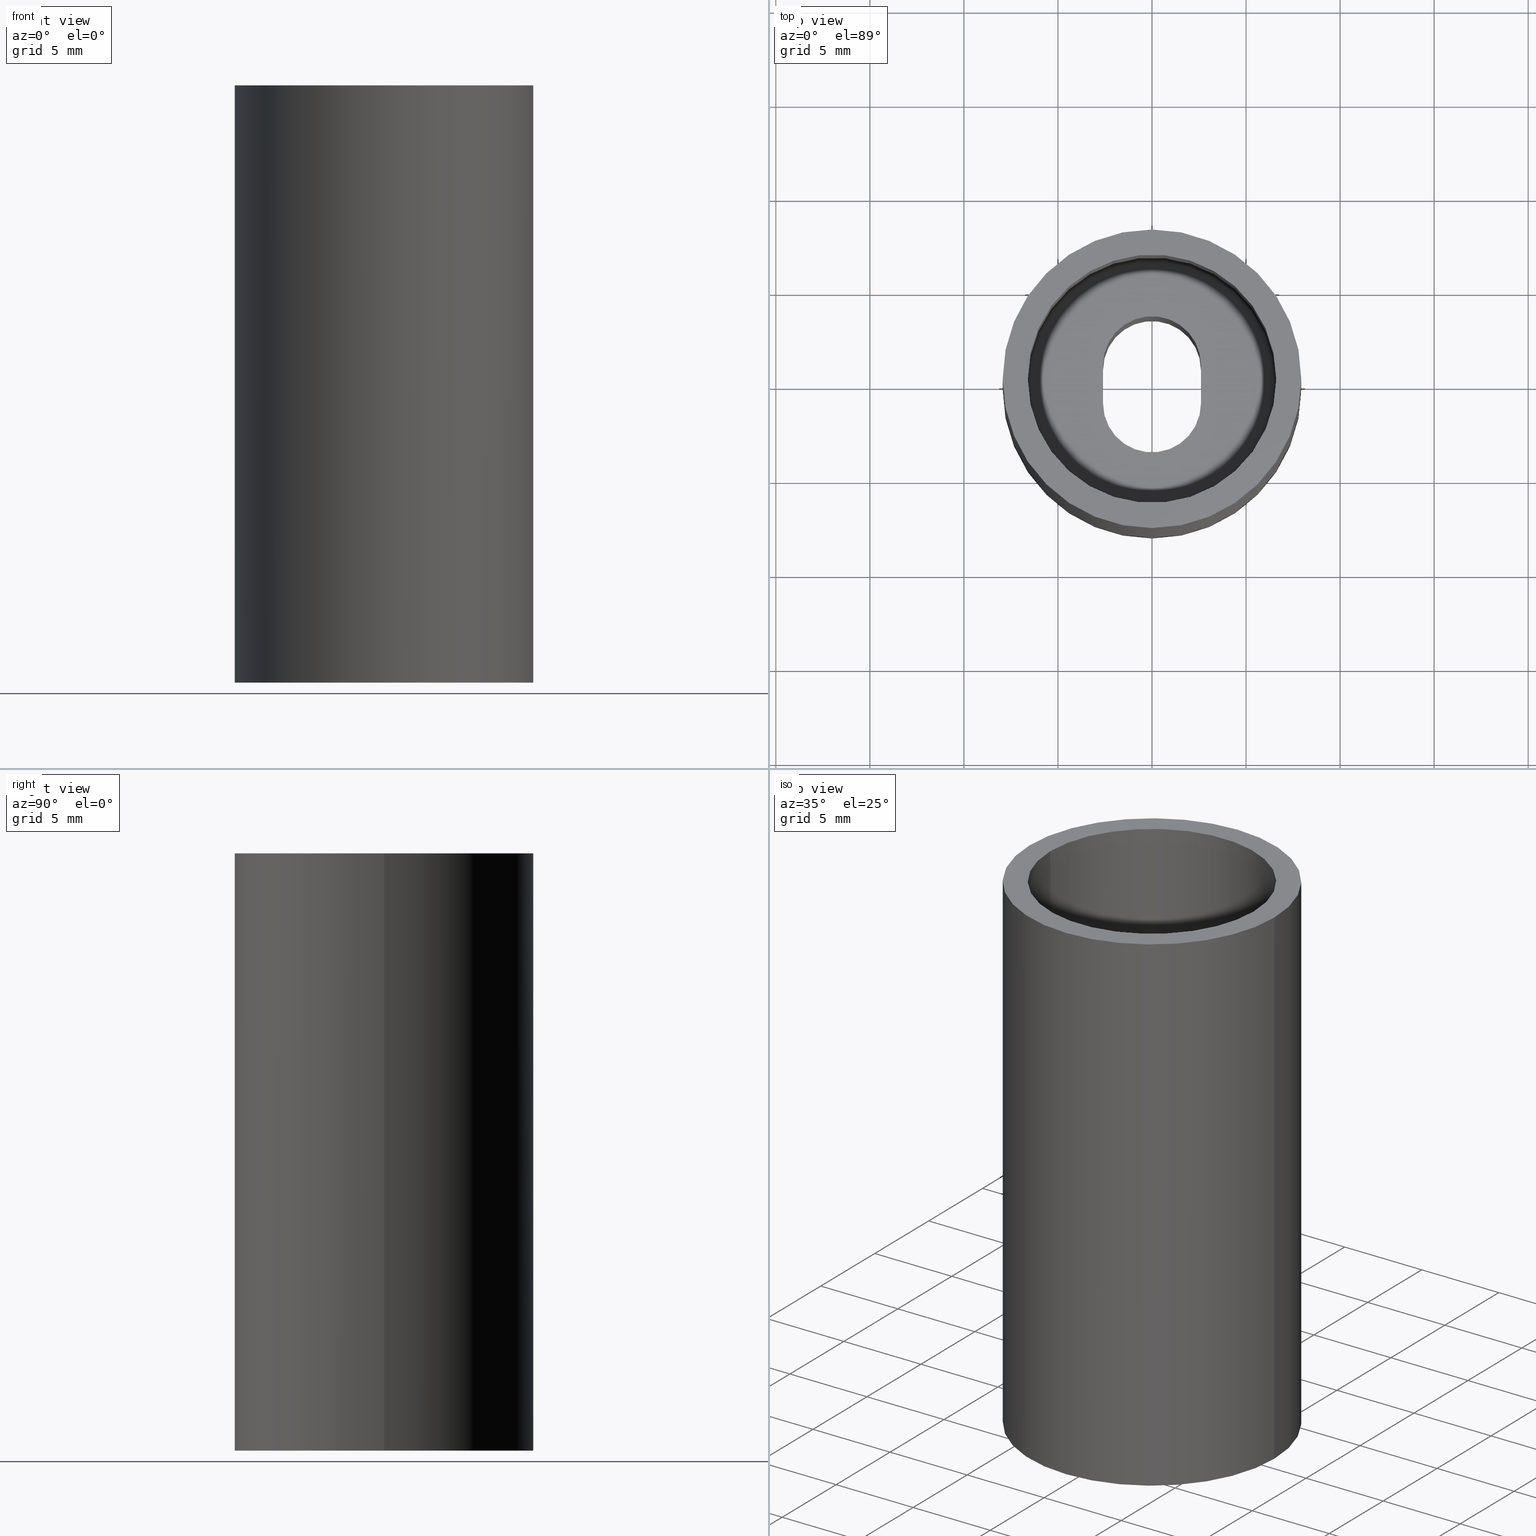
[diagram: canonical four-view strip — front | top / right | iso, engineering-drawing reading convention]
A machine part, canonical four-view strip (front | top / right | iso — engineering-drawing reading convention). The complete STEP part file that produces these views, byte-faithful:
ISO-10303-21;
HEADER;
FILE_DESCRIPTION (( 'STEP AP214' ),
    '1' );
FILE_NAME ('BK0030.STEP',
    '2015-11-24T15:28:24',
    ( 'JeffCAD' ),
    ( 'Microsoft' ),
    'SwSTEP 2.0',
    'SolidWorks 2015',
    '' );
FILE_SCHEMA (( 'AUTOMOTIVE_DESIGN' ));
ENDSEC;

DATA;
#1 = PLANE ( 'NONE',  #367 ) ;
#2 =( LENGTH_UNIT ( ) NAMED_UNIT ( * ) SI_UNIT ( $, .METRE. ) );
#3 = FACE_BOUND ( 'NONE', #375, .T. ) ;
#4 = CARTESIAN_POINT ( 'NONE',  ( 0.3125000000000000000, 0.0000000000000000000, 0.0000000000000000000 ) ) ;
#5 = DIMENSIONAL_EXPONENTS ( 1.000000000000000000, 0.0000000000000000000, 0.0000000000000000000, 0.0000000000000000000, 0.0000000000000000000, 0.0000000000000000000, 0.0000000000000000000 ) ;
#6 = ORIENTED_EDGE ( 'NONE', *, *, #164, .F. ) ;
#7 = DIRECTION ( 'NONE',  ( -0.0000000000000000000, 0.0000000000000000000, 1.000000000000000000 ) ) ;
#8 = DIRECTION ( 'NONE',  ( 0.0000000000000000000, 0.0000000000000000000, 1.000000000000000000 ) ) ;
#9 = FILL_AREA_STYLE_COLOUR ( '', #281 ) ;
#10 = EDGE_CURVE ( 'NONE', #80, #418, #106, .T. ) ;
#11 = ORIENTED_EDGE ( 'NONE', *, *, #90, .F. ) ;
#12 = LINE ( 'NONE', #203, #194 ) ;
#13 = FACE_OUTER_BOUND ( 'NONE', #49, .T. ) ;
#14 = EDGE_CURVE ( 'NONE', #53, #137, #12, .T. ) ;
#15 = CARTESIAN_POINT ( 'NONE',  ( 0.1025000000000000200, -0.03999999999999998000, -0.6600000000000000300 ) ) ;
#16 = ORIENTED_EDGE ( 'NONE', *, *, #90, .T. ) ;
#17 = ORIENTED_EDGE ( 'NONE', *, *, #386, .T. ) ;
#18 = ORIENTED_EDGE ( 'NONE', *, *, #225, .T. ) ;
#19 = PRESENTATION_LAYER_ASSIGNMENT (  '', '', ( #173 ) ) ;
#20 = DIRECTION ( 'NONE',  ( 0.0000000000000000000, 0.0000000000000000000, 1.000000000000000000 ) ) ;
#21 = ADVANCED_FACE ( 'NONE', ( #414 ), #344, .F. ) ;
#22 = CYLINDRICAL_SURFACE ( 'NONE', #314, 0.3125000000000000000 ) ;
#23 = DIRECTION ( 'NONE',  ( 1.000000000000000000, 0.0000000000000000000, 0.0000000000000000000 ) ) ;
#24 = CARTESIAN_POINT ( 'NONE',  ( -0.2450000000000000000, 3.000384657911014900E-017, -0.6450000000000001300 ) ) ;
#25 = VERTEX_POINT ( 'NONE', #159 ) ;
#26 = PRESENTATION_LAYER_ASSIGNMENT (  '', '', ( #311 ) ) ;
#27 = EDGE_LOOP ( 'NONE', ( #211, #259 ) ) ;
#28 = ADVANCED_BREP_SHAPE_REPRESENTATION ( 'BK0030', ( #244, #406 ), #45 ) ;
#29 = ORIENTED_EDGE ( 'NONE', *, *, #217, .F. ) ;
#30 = CARTESIAN_POINT ( 'NONE',  ( -0.1024999999999999900, -0.04000000000000001500, -1.250000000000000000 ) ) ;
#31 = EDGE_CURVE ( 'NONE', #53, #283, #339, .T. ) ;
#32 = LINE ( 'NONE', #149, #303 ) ;
#33 = PLANE ( 'NONE',  #222 ) ;
#34 = FACE_OUTER_BOUND ( 'NONE', #219, .T. ) ;
#35 = ORIENTED_EDGE ( 'NONE', *, *, #69, .T. ) ;
#36 = CARTESIAN_POINT ( 'NONE',  ( -0.2450000000000000000, 3.092233167847066800E-017, -0.6600000000000000300 ) ) ;
#37 = VERTEX_POINT ( 'NONE', #152 ) ;
#38 = ADVANCED_FACE ( 'NONE', ( #389 ), #376, .T. ) ;
#39 = VECTOR ( 'NONE', #189, 39.37007874015748100 ) ;
#40 =( CONVERSION_BASED_UNIT ( 'INCH', #329 ) LENGTH_UNIT ( ) NAMED_UNIT ( #94 ) );
#41 = DIRECTION ( 'NONE',  ( 1.000000000000000000, 0.0000000000000000000, 0.0000000000000000000 ) ) ;
#42 = DIRECTION ( 'NONE',  ( 1.000000000000000000, 0.0000000000000000000, 0.0000000000000000000 ) ) ;
#43 = ORIENTED_EDGE ( 'NONE', *, *, #239, .T. ) ;
#44 = PRODUCT_DEFINITION_CONTEXT ( 'detailed design', #385, 'design' ) ;
#45 =( GEOMETRIC_REPRESENTATION_CONTEXT ( 3 ) GLOBAL_UNCERTAINTY_ASSIGNED_CONTEXT ( ( #394 ) ) GLOBAL_UNIT_ASSIGNED_CONTEXT ( ( #40, #63, #299 ) ) REPRESENTATION_CONTEXT ( 'NONE', 'WORKASPACE' ) );
#46 = CIRCLE ( 'NONE', #118, 0.1024999999999999900 ) ;
#47 = ORIENTED_EDGE ( 'NONE', *, *, #69, .F. ) ;
#48 = DIRECTION ( 'NONE',  ( 0.0000000000000000000, 0.0000000000000000000, 1.000000000000000000 ) ) ;
#49 = EDGE_LOOP ( 'NONE', ( #245, #275, #267, #59 ) ) ;
#50 = LINE ( 'NONE', #30, #397 ) ;
#51 = FACE_OUTER_BOUND ( 'NONE', #27, .T. ) ;
#52 = ORIENTED_EDGE ( 'NONE', *, *, #234, .T. ) ;
#53 = VERTEX_POINT ( 'NONE', #393 ) ;
#54 = DIRECTION ( 'NONE',  ( 0.0000000000000000000, 0.0000000000000000000, 1.000000000000000000 ) ) ;
#55 = ORIENTED_EDGE ( 'NONE', *, *, #295, .T. ) ;
#56 = CARTESIAN_POINT ( 'NONE',  ( 0.2450000000000000000, 0.0000000000000000000, -0.6450000000000001300 ) ) ;
#57 = AXIS2_PLACEMENT_3D ( 'NONE', #56, #116, #290 ) ;
#58 = CARTESIAN_POINT ( 'NONE',  ( 0.1025000000000000200, -0.03999999999999998000, -1.250000000000000000 ) ) ;
#59 = ORIENTED_EDGE ( 'NONE', *, *, #323, .F. ) ;
#60 = VERTEX_POINT ( 'NONE', #4 ) ;
#61 = COLOUR_RGB ( '',0.7921568627450980000, 0.8196078431372548800, 0.9333333333333333500 ) ;
#62 = DIRECTION ( 'NONE',  ( 1.000000000000000000, 0.0000000000000000000, 0.0000000000000000000 ) ) ;
#63 =( NAMED_UNIT ( * ) PLANE_ANGLE_UNIT ( ) SI_UNIT ( $, .RADIAN. ) );
#64 = AXIS2_PLACEMENT_3D ( 'NONE', #71, #54, #272 ) ;
#65 = FACE_OUTER_BOUND ( 'NONE', #235, .T. ) ;
#66 = AXIS2_PLACEMENT_3D ( 'NONE', #174, #291, #87 ) ;
#67 = ORIENTED_EDGE ( 'NONE', *, *, #325, .T. ) ;
#68 = CYLINDRICAL_SURFACE ( 'NONE', #172, 0.1024999999999999900 ) ;
#69 = EDGE_CURVE ( 'NONE', #370, #60, #112, .T. ) ;
#70 = LINE ( 'NONE', #353, #140 ) ;
#71 = CARTESIAN_POINT ( 'NONE',  ( 0.0000000000000000000, 0.0000000000000000000, -1.250000000000000000 ) ) ;
#72 = ADVANCED_FACE ( 'NONE', ( #88, #73 ), #1, .T. ) ;
#73 = FACE_OUTER_BOUND ( 'NONE', #358, .T. ) ;
#74 = AXIS2_PLACEMENT_3D ( 'NONE', #205, #345, #124 ) ;
#75 = ADVANCED_FACE ( 'NONE', ( #327 ), #33, .F. ) ;
#76 =( LENGTH_UNIT ( ) NAMED_UNIT ( * ) SI_UNIT ( $, .METRE. ) );
#77 = CARTESIAN_POINT ( 'NONE',  ( 2.234980408443919300E-017, -0.04000000000000000100, -1.250000000000000000 ) ) ;
#78 = CARTESIAN_POINT ( 'NONE',  ( -0.1024999999999999900, -2.187612651176461300E-017, -1.250000000000000000 ) ) ;
#79 = ADVANCED_FACE ( 'NONE', ( #260 ), #68, .F. ) ;
#80 = VERTEX_POINT ( 'NONE', #341 ) ;
#81 =( GEOMETRIC_REPRESENTATION_CONTEXT ( 3 ) GLOBAL_UNCERTAINTY_ASSIGNED_CONTEXT ( ( #107 ) ) GLOBAL_UNIT_ASSIGNED_CONTEXT ( ( #417, #181, #228 ) ) REPRESENTATION_CONTEXT ( 'NONE', 'WORKASPACE' ) );
#82 = APPLICATION_PROTOCOL_DEFINITION ( 'draft international standard', 'automotive_design', 1998, #385 ) ;
#83 = ADVANCED_FACE ( 'NONE', ( #372 ), #180, .F. ) ;
#84 = CARTESIAN_POINT ( 'NONE',  ( -0.1024999999999999900, 0.03999999999999995200, -0.6600000000000000300 ) ) ;
#85 = ORIENTED_EDGE ( 'NONE', *, *, #255, .F. ) ;
#86 = AXIS2_PLACEMENT_3D ( 'NONE', #254, #308, #62 ) ;
#87 = DIRECTION ( 'NONE',  ( 2.134256245050204700E-016, -1.000000000000000000, 0.0000000000000000000 ) ) ;
#88 = FACE_BOUND ( 'NONE', #226, .T. ) ;
#89 = FACE_OUTER_BOUND ( 'NONE', #151, .T. ) ;
#90 = EDGE_CURVE ( 'NONE', #95, #313, #415, .T. ) ;
#91 = DIRECTION ( 'NONE',  ( 1.000000000000000000, 0.0000000000000000000, 0.0000000000000000000 ) ) ;
#92 = ORIENTED_EDGE ( 'NONE', *, *, #10, .T. ) ;
#93 = DIRECTION ( 'NONE',  ( 0.0000000000000000000, 0.0000000000000000000, 1.000000000000000000 ) ) ;
#94 = DIMENSIONAL_EXPONENTS ( 1.000000000000000000, 0.0000000000000000000, 0.0000000000000000000, 0.0000000000000000000, 0.0000000000000000000, 0.0000000000000000000, 0.0000000000000000000 ) ;
#95 = VERTEX_POINT ( 'NONE', #282 ) ;
#96 = CARTESIAN_POINT ( 'NONE',  ( 0.0000000000000000000, 0.0000000000000000000, -1.250000000000000000 ) ) ;
#97 = AXIS2_PLACEMENT_3D ( 'NONE', #398, #241, #306 ) ;
#98 = DIRECTION ( 'NONE',  ( 1.000000000000000000, 0.0000000000000000000, 0.0000000000000000000 ) ) ;
#99 = AXIS2_PLACEMENT_3D ( 'NONE', #96, #388, #171 ) ;
#100 = ADVANCED_FACE ( 'NONE', ( #145 ), #101, .F. ) ;
#101 = TOROIDAL_SURFACE ( 'NONE', #113, 0.2450000000000000000, 0.01499999999999999900 ) ;
#102 = SURFACE_STYLE_FILL_AREA ( #209 ) ;
#103 = AXIS2_PLACEMENT_3D ( 'NONE', #348, #401, #41 ) ;
#104 = VERTEX_POINT ( 'NONE', #177 ) ;
#105 = CIRCLE ( 'NONE', #154, 0.2600000000000000100 ) ;
#106 = CIRCLE ( 'NONE', #183, 0.2600000000000000100 ) ;
#107 = UNCERTAINTY_MEASURE_WITH_UNIT (LENGTH_MEASURE( 1.000000000000000100E-005 ), #417, 'distance_accuracy_value', 'NONE');
#108 = ADVANCED_FACE ( 'NONE', ( #186 ), #261, .F. ) ;
#109 = DIRECTION ( 'NONE',  ( -0.0000000000000000000, 0.0000000000000000000, 1.000000000000000000 ) ) ;
#110 = EDGE_CURVE ( 'NONE', #53, #111, #307, .T. ) ;
#111 = VERTEX_POINT ( 'NONE', #156 ) ;
#112 = CIRCLE ( 'NONE', #86, 0.3125000000000000000 ) ;
#113 = AXIS2_PLACEMENT_3D ( 'NONE', #419, #7, #98 ) ;
#114 = CARTESIAN_POINT ( 'NONE',  ( -0.3125000000000000000, 3.827021247335478900E-017, -1.250000000000000000 ) ) ;
#115 = CIRCLE ( 'NONE', #213, 0.01500000000000001200 ) ;
#116 = DIRECTION ( 'NONE',  ( 0.0000000000000000000, -1.000000000000000000, 0.0000000000000000000 ) ) ;
#117 = SURFACE_STYLE_FILL_AREA ( #380 ) ;
#118 = AXIS2_PLACEMENT_3D ( 'NONE', #326, #369, #240 ) ;
#119 = CIRCLE ( 'NONE', #266, 0.2450000000000000000 ) ;
#120 = ORIENTED_EDGE ( 'NONE', *, *, #175, .F. ) ;
#121 = PRODUCT_CONTEXT ( 'NONE', #262, 'mechanical' ) ;
#122 = PRESENTATION_STYLE_ASSIGNMENT (( #277 ) ) ;
#123 = ADVANCED_FACE ( 'NONE', ( #13 ), #22, .T. ) ;
#124 = DIRECTION ( 'NONE',  ( 1.000000000000000000, 0.0000000000000000000, 0.0000000000000000000 ) ) ;
#125 =( LENGTH_UNIT ( ) NAMED_UNIT ( * ) SI_UNIT ( $, .METRE. ) );
#126 = CARTESIAN_POINT ( 'NONE',  ( 0.0000000000000000000, 0.0000000000000000000, -1.250000000000000000 ) ) ;
#127 = ORIENTED_EDGE ( 'NONE', *, *, #390, .T. ) ;
#128 = PRODUCT_DEFINITION_FORMATION_WITH_SPECIFIED_SOURCE ( 'ANY', '', #136, .NOT_KNOWN. ) ;
#129 = CARTESIAN_POINT ( 'NONE',  ( 0.2600000000000000100, 0.0000000000000000000, -0.6600000000000000300 ) ) ;
#130 = ORIENTED_EDGE ( 'NONE', *, *, #362, .F. ) ;
#131 = DIRECTION ( 'NONE',  ( 1.000000000000000000, 0.0000000000000000000, 0.0000000000000000000 ) ) ;
#132 = LINE ( 'NONE', #139, #363 ) ;
#133 = AXIS2_PLACEMENT_3D ( 'NONE', #330, #198, #296 ) ;
#134 = DIRECTION ( 'NONE',  ( 1.000000000000000000, 0.0000000000000000000, 0.0000000000000000000 ) ) ;
#135 = EDGE_LOOP ( 'NONE', ( #170, #268, #202, #67 ) ) ;
#136 = PRODUCT ( 'BK0030', 'BK0030', '', ( #121 ) ) ;
#137 = VERTEX_POINT ( 'NONE', #155 ) ;
#138 = EDGE_CURVE ( 'NONE', #337, #336, #400, .T. ) ;
#139 = CARTESIAN_POINT ( 'NONE',  ( 0.3125000000000000000, 0.0000000000000000000, -1.250000000000000000 ) ) ;
#140 = VECTOR ( 'NONE', #298, 39.37007874015748100 ) ;
#141 = DIMENSIONAL_EXPONENTS ( 1.000000000000000000, 0.0000000000000000000, 0.0000000000000000000, 0.0000000000000000000, 0.0000000000000000000, 0.0000000000000000000, 0.0000000000000000000 ) ;
#142 = DIRECTION ( 'NONE',  ( 1.000000000000000000, 0.0000000000000000000, -0.0000000000000000000 ) ) ;
#143 = AXIS2_PLACEMENT_3D ( 'NONE', #168, #332, #412 ) ;
#144 = DIRECTION ( 'NONE',  ( 1.000000000000000000, 0.0000000000000000000, 0.0000000000000000000 ) ) ;
#145 = FACE_OUTER_BOUND ( 'NONE', #319, .T. ) ;
#146 = DIRECTION ( 'NONE',  ( 0.0000000000000000000, 0.0000000000000000000, 1.000000000000000000 ) ) ;
#147 = FILL_AREA_STYLE_COLOUR ( '', #61 ) ;
#148 = VERTEX_POINT ( 'NONE', #36 ) ;
#149 = CARTESIAN_POINT ( 'NONE',  ( -0.1024999999999999900, 0.03999999999999995200, -1.250000000000000000 ) ) ;
#150 = ORIENTED_EDGE ( 'NONE', *, *, #138, .T. ) ;
#151 = EDGE_LOOP ( 'NONE', ( #130, #150, #271, #47 ) ) ;
#152 = CARTESIAN_POINT ( 'NONE',  ( -0.1024999999999999900, -0.04000000000000001500, -1.250000000000000000 ) ) ;
#153 = VECTOR ( 'NONE', #227, 39.37007874015748100 ) ;
#154 = AXIS2_PLACEMENT_3D ( 'NONE', #238, #392, #404 ) ;
#155 = CARTESIAN_POINT ( 'NONE',  ( 0.1024999999999999900, 0.04000000000000004900, -0.6600000000000000300 ) ) ;
#156 = CARTESIAN_POINT ( 'NONE',  ( 0.1025000000000000200, -0.04000000000000000100, -1.250000000000000000 ) ) ;
#157 = EDGE_LOOP ( 'NONE', ( #221, #361, #210, #85 ) ) ;
#158 = AXIS2_PLACEMENT_3D ( 'NONE', #207, #343, #23 ) ;
#159 = CARTESIAN_POINT ( 'NONE',  ( 0.2450000000000000000, 0.0000000000000000000, -0.6600000000000000300 ) ) ;
#160 = LINE ( 'NONE', #218, #349 ) ;
#161 =( NAMED_UNIT ( * ) PLANE_ANGLE_UNIT ( ) SI_UNIT ( $, .RADIAN. ) );
#162 = CIRCLE ( 'NONE', #97, 0.1024999999999999900 ) ;
#163 = DIRECTION ( 'NONE',  ( 0.0000000000000000000, 0.0000000000000000000, 1.000000000000000000 ) ) ;
#164 = EDGE_CURVE ( 'NONE', #104, #365, #162, .T. ) ;
#165 = CARTESIAN_POINT ( 'NONE',  ( -0.1024999999999999900, 0.03999999999999995200, -1.250000000000000000 ) ) ;
#166 = ADVANCED_FACE ( 'NONE', ( #65, #251 ), #206, .T. ) ;
#167 = CARTESIAN_POINT ( 'NONE',  ( 0.0000000000000000000, 0.0000000000000000000, -0.6450000000000001300 ) ) ;
#168 = CARTESIAN_POINT ( 'NONE',  ( 0.0000000000000000000, 0.0000000000000000000, -0.6600000000000000300 ) ) ;
#169 = DIRECTION ( 'NONE',  ( 1.000000000000000000, 0.0000000000000000000, 0.0000000000000000000 ) ) ;
#170 = ORIENTED_EDGE ( 'NONE', *, *, #164, .T. ) ;
#171 = DIRECTION ( 'NONE',  ( 1.000000000000000000, 0.0000000000000000000, 0.0000000000000000000 ) ) ;
#172 = AXIS2_PLACEMENT_3D ( 'NONE', #77, #93, #42 ) ;
#173 = STYLED_ITEM ( 'NONE', ( #122 ), #244 ) ;
#174 = CARTESIAN_POINT ( 'NONE',  ( 0.1025000000000000200, 2.187612651176460000E-017, -1.250000000000000000 ) ) ;
#175 = EDGE_CURVE ( 'NONE', #137, #309, #304, .T. ) ;
#176 = LINE ( 'NONE', #315, #373 ) ;
#177 = CARTESIAN_POINT ( 'NONE',  ( -0.1024999999999999900, -0.04000000000000001500, -0.6600000000000000300 ) ) ;
#178 = LINE ( 'NONE', #371, #39 ) ;
#179 = DIRECTION ( 'NONE',  ( 1.000000000000000000, 0.0000000000000000000, 0.0000000000000000000 ) ) ;
#180 = CYLINDRICAL_SURFACE ( 'NONE', #143, 0.2600000000000000100 ) ;
#181 =( NAMED_UNIT ( * ) PLANE_ANGLE_UNIT ( ) SI_UNIT ( $, .RADIAN. ) );
#182 = ORIENTED_EDGE ( 'NONE', *, *, #368, .T. ) ;
#183 = AXIS2_PLACEMENT_3D ( 'NONE', #167, #263, #134 ) ;
#184 = SURFACE_SIDE_STYLE ('',( #117 ) ) ;
#185 = CIRCLE ( 'NONE', #57, 0.01499999999999997700 ) ;
#186 = FACE_OUTER_BOUND ( 'NONE', #204, .T. ) ;
#187 = DIRECTION ( 'NONE',  ( 1.224646799147353200E-016, 1.000000000000000000, 0.0000000000000000000 ) ) ;
#188 = UNCERTAINTY_MEASURE_WITH_UNIT (LENGTH_MEASURE( 1.000000000000000100E-005 ), #359, 'distance_accuracy_value', 'NONE');
#189 = DIRECTION ( 'NONE',  ( 2.134256245050206200E-016, -1.000000000000000000, 0.0000000000000000000 ) ) ;
#190 = EDGE_CURVE ( 'NONE', #60, #370, #305, .T. ) ;
#191 = ORIENTED_EDGE ( 'NONE', *, *, #190, .T. ) ;
#192 = CARTESIAN_POINT ( 'NONE',  ( -0.3125000000000000000, 3.827021247335478900E-017, 0.0000000000000000000 ) ) ;
#193 = CIRCLE ( 'NONE', #103, 0.2600000000000000100 ) ;
#194 = VECTOR ( 'NONE', #223, 39.37007874015748100 ) ;
#195 = AXIS2_PLACEMENT_3D ( 'NONE', #126, #163, #395 ) ;
#196 = ORIENTED_EDGE ( 'NONE', *, *, #302, .T. ) ;
#197 = AXIS2_PLACEMENT_3D ( 'NONE', #294, #232, #142 ) ;
#198 = DIRECTION ( 'NONE',  ( -0.0000000000000000000, 0.0000000000000000000, 1.000000000000000000 ) ) ;
#199 = CIRCLE ( 'NONE', #64, 0.3125000000000000000 ) ;
#200 = SURFACE_STYLE_USAGE ( .BOTH. , #292 ) ;
#201 = DIRECTION ( 'NONE',  ( 0.0000000000000000000, 0.0000000000000000000, 1.000000000000000000 ) ) ;
#202 = ORIENTED_EDGE ( 'NONE', *, *, #386, .F. ) ;
#203 = CARTESIAN_POINT ( 'NONE',  ( 0.1024999999999999900, 0.04000000000000004900, -1.250000000000000000 ) ) ;
#204 = EDGE_LOOP ( 'NONE', ( #257, #236, #242, #264 ) ) ;
#205 = CARTESIAN_POINT ( 'NONE',  ( -2.143131898507869100E-018, 0.04000000000000000100, -1.250000000000000000 ) ) ;
#206 = PLANE ( 'NONE',  #249 ) ;
#207 = CARTESIAN_POINT ( 'NONE',  ( -2.143131898507869100E-018, 0.04000000000000000100, -1.250000000000000000 ) ) ;
#208 = PRODUCT_DEFINITION ( 'UNKNOWN', '', #128, #44 ) ;
#209 = FILL_AREA_STYLE ('',( #9 ) ) ;
#210 = ORIENTED_EDGE ( 'NONE', *, *, #295, .F. ) ;
#211 = ORIENTED_EDGE ( 'NONE', *, *, #351, .F. ) ;
#212 = DIRECTION ( 'NONE',  ( 1.000000000000000000, 0.0000000000000000000, 0.0000000000000000000 ) ) ;
#213 = AXIS2_PLACEMENT_3D ( 'NONE', #24, #187, #413 ) ;
#214 = CYLINDRICAL_SURFACE ( 'NONE', #99, 0.3125000000000000000 ) ;
#215 = CARTESIAN_POINT ( 'NONE',  ( 0.0000000000000000000, 0.0000000000000000000, -0.6600000000000000300 ) ) ;
#216 = EDGE_LOOP ( 'NONE', ( #6, #356, #120, #382 ) ) ;
#217 = EDGE_CURVE ( 'NONE', #148, #80, #115, .T. ) ;
#218 = CARTESIAN_POINT ( 'NONE',  ( 0.1025000000000000200, 2.187612651176460000E-017, -0.6600000000000000300 ) ) ;
#219 = EDGE_LOOP ( 'NONE', ( #420, #92, #127, #229 ) ) ;
#220 = PRODUCT_RELATED_PRODUCT_CATEGORY ( 'part', '', ( #136 ) ) ;
#221 = ORIENTED_EDGE ( 'NONE', *, *, #320, .F. ) ;
#222 = AXIS2_PLACEMENT_3D ( 'NONE', #78, #350, #280 ) ;
#223 = DIRECTION ( 'NONE',  ( 0.0000000000000000000, 0.0000000000000000000, 1.000000000000000000 ) ) ;
#224 = CYLINDRICAL_SURFACE ( 'NONE', #387, 0.2600000000000000100 ) ;
#225 = EDGE_CURVE ( 'NONE', #111, #365, #310, .T. ) ;
#226 = EDGE_LOOP ( 'NONE', ( #293, #11 ) ) ;
#227 = DIRECTION ( 'NONE',  ( 0.0000000000000000000, 0.0000000000000000000, 1.000000000000000000 ) ) ;
#228 =( NAMED_UNIT ( * ) SI_UNIT ( $, .STERADIAN. ) SOLID_ANGLE_UNIT ( ) );
#229 = ORIENTED_EDGE ( 'NONE', *, *, #270, .T. ) ;
#230 = MECHANICAL_DESIGN_GEOMETRIC_PRESENTATION_REPRESENTATION (  '', ( #173 ), #81 ) ;
#231 = AXIS2_PLACEMENT_3D ( 'NONE', #346, #146, #179 ) ;
#232 = DIRECTION ( 'NONE',  ( 0.0000000000000000000, 0.0000000000000000000, 1.000000000000000000 ) ) ;
#233 = ORIENTED_EDGE ( 'NONE', *, *, #325, .F. ) ;
#234 = EDGE_CURVE ( 'NONE', #283, #37, #178, .T. ) ;
#235 = EDGE_LOOP ( 'NONE', ( #383, #285 ) ) ;
#236 = ORIENTED_EDGE ( 'NONE', *, *, #239, .F. ) ;
#237 = DIRECTION ( 'NONE',  ( -0.0000000000000000000, 0.0000000000000000000, 1.000000000000000000 ) ) ;
#238 = CARTESIAN_POINT ( 'NONE',  ( 0.0000000000000000000, 0.0000000000000000000, -0.6450000000000001300 ) ) ;
#239 = EDGE_CURVE ( 'NONE', #283, #309, #32, .T. ) ;
#240 = DIRECTION ( 'NONE',  ( 1.000000000000000000, 0.0000000000000000000, 0.0000000000000000000 ) ) ;
#241 = DIRECTION ( 'NONE',  ( -0.0000000000000000000, 0.0000000000000000000, 1.000000000000000000 ) ) ;
#242 = ORIENTED_EDGE ( 'NONE', *, *, #31, .F. ) ;
#243 = DIRECTION ( 'NONE',  ( 2.134256245050204700E-016, -1.000000000000000000, 0.0000000000000000000 ) ) ;
#244 = MANIFOLD_SOLID_BREP ( 'Fillet1', #248 ) ;
#245 = ORIENTED_EDGE ( 'NONE', *, *, #351, .T. ) ;
#246 = AXIS2_PLACEMENT_3D ( 'NONE', #300, #333, #212 ) ;
#247 = LINE ( 'NONE', #129, #381 ) ;
#248 = CLOSED_SHELL ( 'NONE', ( #21, #83, #123, #75, #108, #38, #79, #355, #378, #72, #411, #166, #100 ) ) ;
#249 = AXIS2_PLACEMENT_3D ( 'NONE', #360, #421, #357 ) ;
#250 = CIRCLE ( 'NONE', #246, 0.2450000000000000000 ) ;
#251 = FACE_BOUND ( 'NONE', #216, .T. ) ;
#252 = CARTESIAN_POINT ( 'NONE',  ( -2.143131898507869100E-018, 0.04000000000000000100, -0.6600000000000000300 ) ) ;
#253 = VECTOR ( 'NONE', #374, 39.37007874015748100 ) ;
#254 = CARTESIAN_POINT ( 'NONE',  ( 0.0000000000000000000, 0.0000000000000000000, 0.0000000000000000000 ) ) ;
#255 = EDGE_CURVE ( 'NONE', #25, #418, #185, .T. ) ;
#256 = CARTESIAN_POINT ( 'NONE',  ( 0.1025000000000000200, 2.187612651176460000E-017, -1.250000000000000000 ) ) ;
#257 = ORIENTED_EDGE ( 'NONE', *, *, #175, .T. ) ;
#258 = CARTESIAN_POINT ( 'NONE',  ( 0.3125000000000000000, 0.0000000000000000000, -1.250000000000000000 ) ) ;
#259 = ORIENTED_EDGE ( 'NONE', *, *, #138, .F. ) ;
#260 = FACE_OUTER_BOUND ( 'NONE', #135, .T. ) ;
#261 = CYLINDRICAL_SURFACE ( 'NONE', #74, 0.1024999999999999900 ) ;
#262 = APPLICATION_CONTEXT ( 'automotive_design' ) ;
#263 = DIRECTION ( 'NONE',  ( 0.0000000000000000000, -0.0000000000000000000, -1.000000000000000000 ) ) ;
#264 = ORIENTED_EDGE ( 'NONE', *, *, #14, .T. ) ;
#265 = DIRECTION ( 'NONE',  ( 1.000000000000000000, 0.0000000000000000000, 0.0000000000000000000 ) ) ;
#266 = AXIS2_PLACEMENT_3D ( 'NONE', #396, #237, #131 ) ;
#267 = ORIENTED_EDGE ( 'NONE', *, *, #190, .F. ) ;
#268 = ORIENTED_EDGE ( 'NONE', *, *, #225, .F. ) ;
#269 = AXIS2_PLACEMENT_3D ( 'NONE', #252, #109, #317 ) ;
#270 = EDGE_CURVE ( 'NONE', #313, #95, #193, .T. ) ;
#271 = ORIENTED_EDGE ( 'NONE', *, *, #323, .T. ) ;
#272 = DIRECTION ( 'NONE',  ( 1.000000000000000000, 0.0000000000000000000, 0.0000000000000000000 ) ) ;
#273 = LINE ( 'NONE', #340, #253 ) ;
#274 = CARTESIAN_POINT ( 'NONE',  ( 0.0000000000000000000, 0.0000000000000000000, -1.250000000000000000 ) ) ;
#275 = ORIENTED_EDGE ( 'NONE', *, *, #362, .T. ) ;
#276 = AXIS2_PLACEMENT_3D ( 'NONE', #364, #324, #169 ) ;
#277 = SURFACE_STYLE_USAGE ( .BOTH. , #184 ) ;
#278 = ORIENTED_EDGE ( 'NONE', *, *, #31, .T. ) ;
#279 = VECTOR ( 'NONE', #366, 39.37007874015748100 ) ;
#280 = DIRECTION ( 'NONE',  ( 2.134256245050206200E-016, -1.000000000000000000, 0.0000000000000000000 ) ) ;
#281 = COLOUR_RGB ( '',0.7921568627450980000, 0.8196078431372548800, 0.9333333333333333500 ) ;
#282 = CARTESIAN_POINT ( 'NONE',  ( -0.2600000000000000100, 3.184081677783118700E-017, 0.0000000000000000000 ) ) ;
#283 = VERTEX_POINT ( 'NONE', #165 ) ;
#284 = DIRECTION ( 'NONE',  ( -0.0000000000000000000, -0.0000000000000000000, 1.000000000000000000 ) ) ;
#285 = ORIENTED_EDGE ( 'NONE', *, *, #320, .T. ) ;
#286 = PLANE ( 'NONE',  #197 ) ;
#287 = ORIENTED_EDGE ( 'NONE', *, *, #234, .F. ) ;
#288 = EDGE_LOOP ( 'NONE', ( #18, #297, #399, #377 ) ) ;
#289 = MECHANICAL_DESIGN_GEOMETRIC_PRESENTATION_REPRESENTATION (  '', ( #311 ), #334 ) ;
#290 = DIRECTION ( 'NONE',  ( 0.0000000000000000000, 0.0000000000000000000, -1.000000000000000000 ) ) ;
#291 = DIRECTION ( 'NONE',  ( -1.000000000000000000, -2.134256245050204700E-016, 0.0000000000000000000 ) ) ;
#292 = SURFACE_SIDE_STYLE ('',( #102 ) ) ;
#293 = ORIENTED_EDGE ( 'NONE', *, *, #270, .F. ) ;
#294 = CARTESIAN_POINT ( 'NONE',  ( 0.0000000000000000000, 0.0000000000000000000, -1.250000000000000000 ) ) ;
#295 = EDGE_CURVE ( 'NONE', #418, #80, #105, .T. ) ;
#296 = DIRECTION ( 'NONE',  ( 1.000000000000000000, 0.0000000000000000000, 0.0000000000000000000 ) ) ;
#297 = ORIENTED_EDGE ( 'NONE', *, *, #342, .F. ) ;
#298 = DIRECTION ( 'NONE',  ( 0.0000000000000000000, 0.0000000000000000000, 1.000000000000000000 ) ) ;
#299 =( NAMED_UNIT ( * ) SI_UNIT ( $, .STERADIAN. ) SOLID_ANGLE_UNIT ( ) );
#300 = CARTESIAN_POINT ( 'NONE',  ( 0.0000000000000000000, 0.0000000000000000000, -0.6600000000000000300 ) ) ;
#301 = ORIENTED_EDGE ( 'NONE', *, *, #403, .F. ) ;
#302 = EDGE_CURVE ( 'NONE', #309, #104, #176, .T. ) ;
#303 = VECTOR ( 'NONE', #20, 39.37007874015748100 ) ;
#304 = CIRCLE ( 'NONE', #269, 0.1024999999999999900 ) ;
#305 = CIRCLE ( 'NONE', #231, 0.3125000000000000000 ) ;
#306 = DIRECTION ( 'NONE',  ( 1.000000000000000000, 0.0000000000000000000, 0.0000000000000000000 ) ) ;
#307 = LINE ( 'NONE', #256, #279 ) ;
#308 = DIRECTION ( 'NONE',  ( 0.0000000000000000000, 0.0000000000000000000, 1.000000000000000000 ) ) ;
#309 = VERTEX_POINT ( 'NONE', #84 ) ;
#310 = LINE ( 'NONE', #58, #153 ) ;
#311 = STYLED_ITEM ( 'NONE', ( #416 ), #28 ) ;
#312 = DIRECTION ( 'NONE',  ( 2.134256245050206200E-016, -1.000000000000000000, 0.0000000000000000000 ) ) ;
#313 = VERTEX_POINT ( 'NONE', #352 ) ;
#314 = AXIS2_PLACEMENT_3D ( 'NONE', #274, #48, #144 ) ;
#315 = CARTESIAN_POINT ( 'NONE',  ( -0.1024999999999999900, -2.187612651176461300E-017, -0.6600000000000000300 ) ) ;
#316 = EDGE_LOOP ( 'NONE', ( #196, #233, #287, #43 ) ) ;
#317 = DIRECTION ( 'NONE',  ( 1.000000000000000000, 0.0000000000000000000, 0.0000000000000000000 ) ) ;
#318 = ORIENTED_EDGE ( 'NONE', *, *, #390, .F. ) ;
#319 = EDGE_LOOP ( 'NONE', ( #29, #301, #408, #331 ) ) ;
#320 = EDGE_CURVE ( 'NONE', #148, #25, #250, .T. ) ;
#321 = LENGTH_MEASURE_WITH_UNIT ( LENGTH_MEASURE( 0.02539999999999999900 ), #76 );
#322 = CARTESIAN_POINT ( 'NONE',  ( 0.0000000000000000000, 0.0000000000000000000, 0.0000000000000000000 ) ) ;
#323 = EDGE_CURVE ( 'NONE', #336, #60, #132, .T. ) ;
#324 = DIRECTION ( 'NONE',  ( -0.0000000000000000000, 0.0000000000000000000, 1.000000000000000000 ) ) ;
#325 = EDGE_CURVE ( 'NONE', #37, #104, #50, .T. ) ;
#326 = CARTESIAN_POINT ( 'NONE',  ( 2.234980408443919300E-017, -0.04000000000000000100, -1.250000000000000000 ) ) ;
#327 = FACE_OUTER_BOUND ( 'NONE', #316, .T. ) ;
#328 = DIRECTION ( 'NONE',  ( 0.0000000000000000000, 0.0000000000000000000, 1.000000000000000000 ) ) ;
#329 = LENGTH_MEASURE_WITH_UNIT ( LENGTH_MEASURE( 0.02539999999999999900 ), #125 );
#330 = CARTESIAN_POINT ( 'NONE',  ( 0.0000000000000000000, 0.0000000000000000000, -0.6450000000000001300 ) ) ;
#331 = ORIENTED_EDGE ( 'NONE', *, *, #10, .F. ) ;
#332 = DIRECTION ( 'NONE',  ( -0.0000000000000000000, -0.0000000000000000000, 1.000000000000000000 ) ) ;
#333 = DIRECTION ( 'NONE',  ( -0.0000000000000000000, 0.0000000000000000000, 1.000000000000000000 ) ) ;
#334 =( GEOMETRIC_REPRESENTATION_CONTEXT ( 3 ) GLOBAL_UNCERTAINTY_ASSIGNED_CONTEXT ( ( #188 ) ) GLOBAL_UNIT_ASSIGNED_CONTEXT ( ( #359, #161, #391 ) ) REPRESENTATION_CONTEXT ( 'NONE', 'WORKASPACE' ) );
#335 = CARTESIAN_POINT ( 'NONE',  ( 0.2600000000000000100, 0.0000000000000000000, -0.6450000000000001300 ) ) ;
#336 = VERTEX_POINT ( 'NONE', #258 ) ;
#337 = VERTEX_POINT ( 'NONE', #114 ) ;
#338 = DIRECTION ( 'NONE',  ( -0.0000000000000000000, -0.0000000000000000000, 1.000000000000000000 ) ) ;
#339 = CIRCLE ( 'NONE', #158, 0.1024999999999999900 ) ;
#340 = CARTESIAN_POINT ( 'NONE',  ( -0.2600000000000000100, 3.184081677783118700E-017, -0.6600000000000000300 ) ) ;
#341 = CARTESIAN_POINT ( 'NONE',  ( -0.2600000000000000100, 3.184081677783118700E-017, -0.6450000000000001300 ) ) ;
#342 = EDGE_CURVE ( 'NONE', #137, #365, #160, .T. ) ;
#343 = DIRECTION ( 'NONE',  ( -0.0000000000000000000, 0.0000000000000000000, 1.000000000000000000 ) ) ;
#344 = TOROIDAL_SURFACE ( 'NONE', #133, 0.2450000000000000000, 0.01499999999999999900 ) ;
#345 = DIRECTION ( 'NONE',  ( 0.0000000000000000000, 0.0000000000000000000, 1.000000000000000000 ) ) ;
#346 = CARTESIAN_POINT ( 'NONE',  ( 0.0000000000000000000, 0.0000000000000000000, 0.0000000000000000000 ) ) ;
#347 = ORIENTED_EDGE ( 'NONE', *, *, #110, .F. ) ;
#348 = CARTESIAN_POINT ( 'NONE',  ( 0.0000000000000000000, 0.0000000000000000000, 0.0000000000000000000 ) ) ;
#349 = VECTOR ( 'NONE', #243, 39.37007874015748100 ) ;
#350 = DIRECTION ( 'NONE',  ( -1.000000000000000000, -2.134256245050206200E-016, 0.0000000000000000000 ) ) ;
#351 = EDGE_CURVE ( 'NONE', #336, #337, #199, .T. ) ;
#352 = CARTESIAN_POINT ( 'NONE',  ( 0.2600000000000000100, 0.0000000000000000000, 0.0000000000000000000 ) ) ;
#353 = CARTESIAN_POINT ( 'NONE',  ( -0.3125000000000000000, 3.827021247335478900E-017, -1.250000000000000000 ) ) ;
#354 = PRODUCT_DEFINITION_SHAPE ( 'NONE', 'NONE',  #208 ) ;
#355 = ADVANCED_FACE ( 'NONE', ( #89 ), #214, .T. ) ;
#356 = ORIENTED_EDGE ( 'NONE', *, *, #302, .F. ) ;
#357 = DIRECTION ( 'NONE',  ( 1.000000000000000000, 0.0000000000000000000, 0.0000000000000000000 ) ) ;
#358 = EDGE_LOOP ( 'NONE', ( #191, #35 ) ) ;
#359 =( CONVERSION_BASED_UNIT ( 'INCH', #402 ) LENGTH_UNIT ( ) NAMED_UNIT ( #5 ) );
#360 = CARTESIAN_POINT ( 'NONE',  ( 0.0000000000000000000, 0.0000000000000000000, -0.6600000000000000300 ) ) ;
#361 = ORIENTED_EDGE ( 'NONE', *, *, #217, .T. ) ;
#362 = EDGE_CURVE ( 'NONE', #337, #370, #70, .T. ) ;
#363 = VECTOR ( 'NONE', #379, 39.37007874015748100 ) ;
#364 = CARTESIAN_POINT ( 'NONE',  ( 0.0000000000000000000, 0.0000000000000000000, 0.0000000000000000000 ) ) ;
#365 = VERTEX_POINT ( 'NONE', #15 ) ;
#366 = DIRECTION ( 'NONE',  ( 2.134256245050204700E-016, -1.000000000000000000, 0.0000000000000000000 ) ) ;
#367 = AXIS2_PLACEMENT_3D ( 'NONE', #407, #8, #384 ) ;
#368 = EDGE_CURVE ( 'NONE', #80, #95, #273, .T. ) ;
#369 = DIRECTION ( 'NONE',  ( -0.0000000000000000000, 0.0000000000000000000, 1.000000000000000000 ) ) ;
#370 = VERTEX_POINT ( 'NONE', #192 ) ;
#371 = CARTESIAN_POINT ( 'NONE',  ( -0.1024999999999999900, -2.187612651176461300E-017, -1.250000000000000000 ) ) ;
#372 = FACE_OUTER_BOUND ( 'NONE', #405, .T. ) ;
#373 = VECTOR ( 'NONE', #312, 39.37007874015748100 ) ;
#374 = DIRECTION ( 'NONE',  ( -0.0000000000000000000, -0.0000000000000000000, 1.000000000000000000 ) ) ;
#375 = EDGE_LOOP ( 'NONE', ( #278, #52, #17, #347 ) ) ;
#376 = PLANE ( 'NONE',  #66 ) ;
#377 = ORIENTED_EDGE ( 'NONE', *, *, #110, .T. ) ;
#378 = ADVANCED_FACE ( 'NONE', ( #3, #51 ), #286, .F. ) ;
#379 = DIRECTION ( 'NONE',  ( 0.0000000000000000000, 0.0000000000000000000, 1.000000000000000000 ) ) ;
#380 = FILL_AREA_STYLE ('',( #147 ) ) ;
#381 = VECTOR ( 'NONE', #338, 39.37007874015748100 ) ;
#382 = ORIENTED_EDGE ( 'NONE', *, *, #342, .T. ) ;
#383 = ORIENTED_EDGE ( 'NONE', *, *, #403, .T. ) ;
#384 = DIRECTION ( 'NONE',  ( 1.000000000000000000, 0.0000000000000000000, -0.0000000000000000000 ) ) ;
#385 = APPLICATION_CONTEXT ( 'automotive_design' ) ;
#386 = EDGE_CURVE ( 'NONE', #37, #111, #46, .T. ) ;
#387 = AXIS2_PLACEMENT_3D ( 'NONE', #215, #284, #265 ) ;
#388 = DIRECTION ( 'NONE',  ( 0.0000000000000000000, 0.0000000000000000000, 1.000000000000000000 ) ) ;
#389 = FACE_OUTER_BOUND ( 'NONE', #288, .T. ) ;
#390 = EDGE_CURVE ( 'NONE', #418, #313, #247, .T. ) ;
#391 =( NAMED_UNIT ( * ) SI_UNIT ( $, .STERADIAN. ) SOLID_ANGLE_UNIT ( ) );
#392 = DIRECTION ( 'NONE',  ( 0.0000000000000000000, -0.0000000000000000000, -1.000000000000000000 ) ) ;
#393 = CARTESIAN_POINT ( 'NONE',  ( 0.1024999999999999900, 0.04000000000000004900, -1.250000000000000000 ) ) ;
#394 = UNCERTAINTY_MEASURE_WITH_UNIT (LENGTH_MEASURE( 1.000000000000000100E-005 ), #40, 'distance_accuracy_value', 'NONE');
#395 = DIRECTION ( 'NONE',  ( 1.000000000000000000, 0.0000000000000000000, 0.0000000000000000000 ) ) ;
#396 = CARTESIAN_POINT ( 'NONE',  ( 0.0000000000000000000, 0.0000000000000000000, -0.6600000000000000300 ) ) ;
#397 = VECTOR ( 'NONE', #201, 39.37007874015748100 ) ;
#398 = CARTESIAN_POINT ( 'NONE',  ( 2.234980408443919300E-017, -0.04000000000000000100, -0.6600000000000000300 ) ) ;
#399 = ORIENTED_EDGE ( 'NONE', *, *, #14, .F. ) ;
#400 = CIRCLE ( 'NONE', #195, 0.3125000000000000000 ) ;
#401 = DIRECTION ( 'NONE',  ( -0.0000000000000000000, 0.0000000000000000000, 1.000000000000000000 ) ) ;
#402 = LENGTH_MEASURE_WITH_UNIT ( LENGTH_MEASURE( 0.02539999999999999900 ), #2 );
#403 = EDGE_CURVE ( 'NONE', #25, #148, #119, .T. ) ;
#404 = DIRECTION ( 'NONE',  ( 1.000000000000000000, 0.0000000000000000000, 0.0000000000000000000 ) ) ;
#405 = EDGE_LOOP ( 'NONE', ( #55, #182, #16, #318 ) ) ;
#406 = AXIS2_PLACEMENT_3D ( 'NONE', #322, #328, #91 ) ;
#407 = CARTESIAN_POINT ( 'NONE',  ( 0.0000000000000000000, 0.0000000000000000000, 0.0000000000000000000 ) ) ;
#408 = ORIENTED_EDGE ( 'NONE', *, *, #255, .T. ) ;
#409 = APPLICATION_PROTOCOL_DEFINITION ( 'draft international standard', 'automotive_design', 1998, #262 ) ;
#410 = SHAPE_DEFINITION_REPRESENTATION ( #354, #28 ) ;
#411 = ADVANCED_FACE ( 'NONE', ( #34 ), #224, .F. ) ;
#412 = DIRECTION ( 'NONE',  ( 1.000000000000000000, 0.0000000000000000000, 0.0000000000000000000 ) ) ;
#413 = DIRECTION ( 'NONE',  ( -1.000000000000000000, 1.224646799147352200E-016, 0.0000000000000000000 ) ) ;
#414 = FACE_OUTER_BOUND ( 'NONE', #157, .T. ) ;
#415 = CIRCLE ( 'NONE', #276, 0.2600000000000000100 ) ;
#416 = PRESENTATION_STYLE_ASSIGNMENT (( #200 ) ) ;
#417 =( CONVERSION_BASED_UNIT ( 'INCH', #321 ) LENGTH_UNIT ( ) NAMED_UNIT ( #141 ) );
#418 = VERTEX_POINT ( 'NONE', #335 ) ;
#419 = CARTESIAN_POINT ( 'NONE',  ( 0.0000000000000000000, 0.0000000000000000000, -0.6450000000000001300 ) ) ;
#420 = ORIENTED_EDGE ( 'NONE', *, *, #368, .F. ) ;
#421 = DIRECTION ( 'NONE',  ( -0.0000000000000000000, 0.0000000000000000000, 1.000000000000000000 ) ) ;
ENDSEC;
END-ISO-10303-21;
